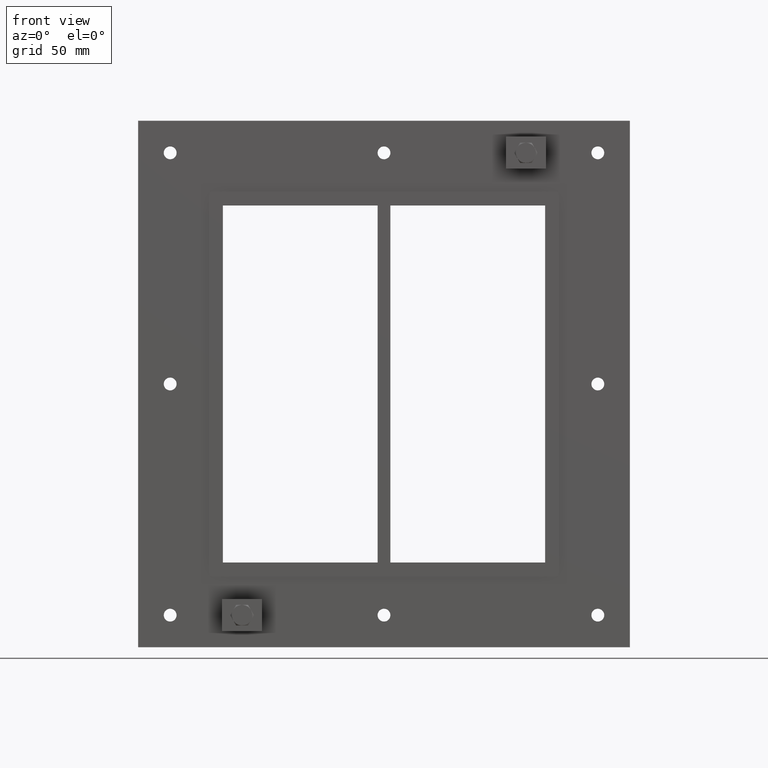
[diagram: clean part render]
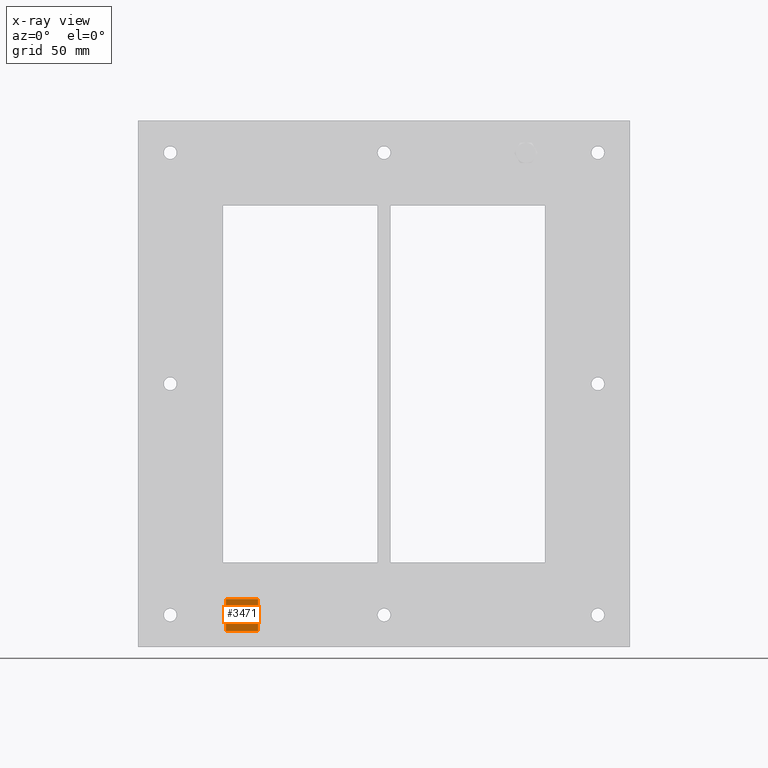
[diagram: x-ray — body ghosted, one internal face saturated and labeled with its STEP entity id]
A machine part, front view, then the same camera in x-ray: the body is ghosted and one INTERNAL B-rep face — a face not visible from any outside direction — is saturated and labeled: STEP entity #3471.
In plain terms, the highlighted planar face has unit normal (0, 1, 0).
Its self-contained STEP definition (entity closure, byte-faithful):
#3326=CARTESIAN_POINT('',(-122.99999999999997,0.0,-192.50000000000003));
#3327=VERTEX_POINT('',#3326);
#3328=CARTESIAN_POINT('',(-122.99999999999997,0.0,-167.49999999999994));
#3329=VERTEX_POINT('',#3328);
#3330=CARTESIAN_POINT('',(-122.99999999999997,0.0,-192.50000000000003));
#3331=DIRECTION('',(0.0,0.0,1.0));
#3332=VECTOR('',#3331,25.000000000000114);
#3333=LINE('',#3330,#3332);
#3334=EDGE_CURVE('',#3327,#3329,#3333,.T.);
#3366=CARTESIAN_POINT('',(-98.000000000000043,0.0,-167.49999999999994));
#3367=VERTEX_POINT('',#3366);
#3368=CARTESIAN_POINT('',(-122.99999999999997,0.0,-167.49999999999994));
#3369=DIRECTION('',(1.0,0.0,0.0));
#3370=VECTOR('',#3369,24.999999999999929);
#3371=LINE('',#3368,#3370);
#3372=EDGE_CURVE('',#3329,#3367,#3371,.T.);
#3397=CARTESIAN_POINT('',(-98.000000000000043,0.0,-192.50000000000003));
#3398=VERTEX_POINT('',#3397);
#3399=CARTESIAN_POINT('',(-98.000000000000043,0.0,-167.49999999999994));
#3400=DIRECTION('',(0.0,0.0,-1.0));
#3401=VECTOR('',#3400,25.000000000000114);
#3402=LINE('',#3399,#3401);
#3403=EDGE_CURVE('',#3367,#3398,#3402,.T.);
#3428=CARTESIAN_POINT('',(-98.000000000000043,0.0,-192.50000000000003));
#3429=DIRECTION('',(-1.0,0.0,0.0));
#3430=VECTOR('',#3429,24.999999999999929);
#3431=LINE('',#3428,#3430);
#3432=EDGE_CURVE('',#3398,#3327,#3431,.T.);
#3460=CARTESIAN_POINT('',(-110.5,0.0,-180.0));
#3461=DIRECTION('',(0.0,1.0,0.0));
#3462=DIRECTION('',(0.0,0.0,1.0));
#3463=AXIS2_PLACEMENT_3D('',#3460,#3461,#3462);
#3464=PLANE('',#3463);
#3465=ORIENTED_EDGE('',*,*,#3432,.T.);
#3466=ORIENTED_EDGE('',*,*,#3334,.T.);
#3467=ORIENTED_EDGE('',*,*,#3372,.T.);
#3468=ORIENTED_EDGE('',*,*,#3403,.T.);
#3469=EDGE_LOOP('',(#3465,#3466,#3467,#3468));
#3470=FACE_OUTER_BOUND('',#3469,.T.);
#3471=ADVANCED_FACE('',(#3470),#3464,.T.);